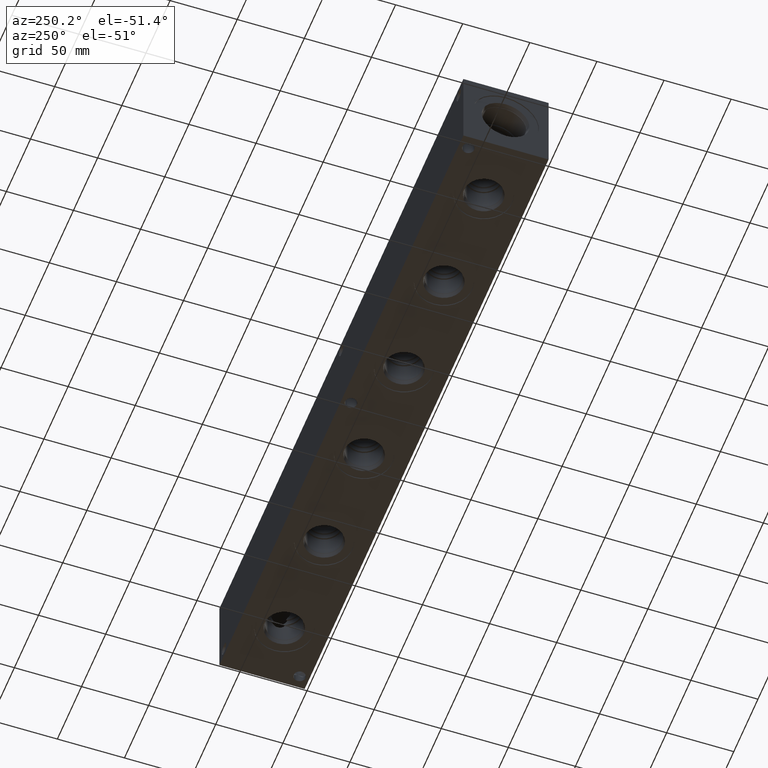
[diagram: clean part render]
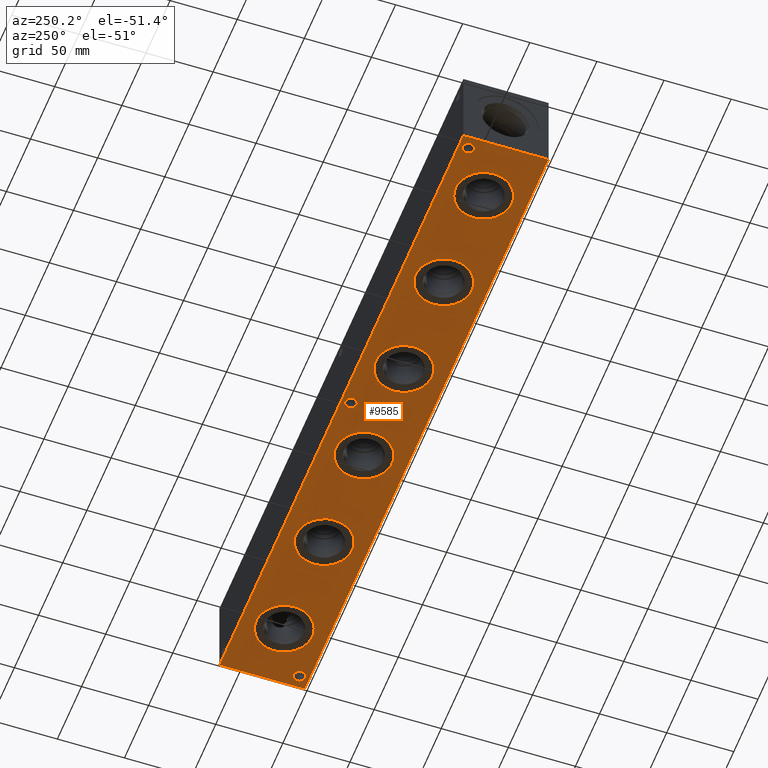
[diagram: same view with one face highlighted and labeled with its STEP entity id]
A machine part, auxiliary view. The second image highlights one B-rep face of the part: STEP entity #9585.
In plain terms, the highlighted planar face has unit normal (0, 0, 1).
Its self-contained STEP definition (entity closure, byte-faithful):
#199=CIRCLE('',#9833,21.0185);
#200=CIRCLE('',#9834,21.0185);
#210=CIRCLE('',#9849,21.0185);
#211=CIRCLE('',#9850,21.0185);
#221=CIRCLE('',#9865,21.0185);
#222=CIRCLE('',#9866,21.0185);
#232=CIRCLE('',#9881,21.0185);
#233=CIRCLE('',#9882,21.0185);
#243=CIRCLE('',#9897,21.0185);
#244=CIRCLE('',#9898,21.0185);
#314=CIRCLE('',#10018,21.0185);
#315=CIRCLE('',#10019,21.0185);
#333=CIRCLE('',#10063,4.3688);
#334=CIRCLE('',#10065,4.3688);
#335=CIRCLE('',#10067,4.3688);
#538=FACE_BOUND('',#1956,.T.);
#539=FACE_BOUND('',#1957,.T.);
#540=FACE_BOUND('',#1958,.T.);
#541=FACE_BOUND('',#1959,.T.);
#542=FACE_BOUND('',#1960,.T.);
#543=FACE_BOUND('',#1961,.T.);
#544=FACE_BOUND('',#1962,.T.);
#545=FACE_BOUND('',#1963,.T.);
#546=FACE_BOUND('',#1964,.T.);
#1393=FACE_OUTER_BOUND('',#1955,.T.);
#1955=EDGE_LOOP('',(#8519,#8520,#8521,#8522));
#1956=EDGE_LOOP('',(#8523,#8524));
#1957=EDGE_LOOP('',(#8525,#8526));
#1958=EDGE_LOOP('',(#8527,#8528));
#1959=EDGE_LOOP('',(#8529,#8530));
#1960=EDGE_LOOP('',(#8531,#8532));
#1961=EDGE_LOOP('',(#8533,#8534));
#1962=EDGE_LOOP('',(#8535));
#1963=EDGE_LOOP('',(#8536));
#1964=EDGE_LOOP('',(#8537));
#2752=LINE('',#16845,#3547);
#2755=LINE('',#16850,#3550);
#2757=LINE('',#16854,#3552);
#2759=LINE('',#16857,#3554);
#3547=VECTOR('',#12467,10.);
#3550=VECTOR('',#12472,10.);
#3552=VECTOR('',#12476,10.);
#3554=VECTOR('',#12480,10.);
#4149=VERTEX_POINT('',#15561);
#4150=VERTEX_POINT('',#15562);
#4160=VERTEX_POINT('',#15592);
#4161=VERTEX_POINT('',#15593);
#4171=VERTEX_POINT('',#15623);
#4172=VERTEX_POINT('',#15624);
#4182=VERTEX_POINT('',#15654);
#4183=VERTEX_POINT('',#15655);
#4193=VERTEX_POINT('',#15685);
#4194=VERTEX_POINT('',#15686);
#4302=VERTEX_POINT('',#16289);
#4303=VERTEX_POINT('',#16290);
#4327=VERTEX_POINT('',#16372);
#4328=VERTEX_POINT('',#16376);
#4329=VERTEX_POINT('',#16380);
#4460=VERTEX_POINT('',#16843);
#4461=VERTEX_POINT('',#16844);
#4462=VERTEX_POINT('',#16849);
#4463=VERTEX_POINT('',#16853);
#5344=EDGE_CURVE('',#4149,#4150,#199,.T.);
#5345=EDGE_CURVE('',#4150,#4149,#200,.T.);
#5359=EDGE_CURVE('',#4160,#4161,#210,.T.);
#5360=EDGE_CURVE('',#4161,#4160,#211,.T.);
#5374=EDGE_CURVE('',#4171,#4172,#221,.T.);
#5375=EDGE_CURVE('',#4172,#4171,#222,.T.);
#5389=EDGE_CURVE('',#4182,#4183,#232,.T.);
#5390=EDGE_CURVE('',#4183,#4182,#233,.T.);
#5404=EDGE_CURVE('',#4193,#4194,#243,.T.);
#5405=EDGE_CURVE('',#4194,#4193,#244,.T.);
#5558=EDGE_CURVE('',#4302,#4303,#314,.T.);
#5559=EDGE_CURVE('',#4303,#4302,#315,.T.);
#5603=EDGE_CURVE('',#4327,#4327,#333,.T.);
#5605=EDGE_CURVE('',#4328,#4328,#334,.T.);
#5607=EDGE_CURVE('',#4329,#4329,#335,.T.);
#5814=EDGE_CURVE('',#4460,#4461,#2752,.T.);
#5817=EDGE_CURVE('',#4462,#4460,#2755,.T.);
#5819=EDGE_CURVE('',#4463,#4462,#2757,.T.);
#5821=EDGE_CURVE('',#4461,#4463,#2759,.T.);
#8519=ORIENTED_EDGE('',*,*,#5821,.F.);
#8520=ORIENTED_EDGE('',*,*,#5814,.F.);
#8521=ORIENTED_EDGE('',*,*,#5817,.F.);
#8522=ORIENTED_EDGE('',*,*,#5819,.F.);
#8523=ORIENTED_EDGE('',*,*,#5344,.T.);
#8524=ORIENTED_EDGE('',*,*,#5345,.T.);
#8525=ORIENTED_EDGE('',*,*,#5359,.T.);
#8526=ORIENTED_EDGE('',*,*,#5360,.T.);
#8527=ORIENTED_EDGE('',*,*,#5374,.T.);
#8528=ORIENTED_EDGE('',*,*,#5375,.T.);
#8529=ORIENTED_EDGE('',*,*,#5389,.T.);
#8530=ORIENTED_EDGE('',*,*,#5390,.T.);
#8531=ORIENTED_EDGE('',*,*,#5404,.T.);
#8532=ORIENTED_EDGE('',*,*,#5405,.T.);
#8533=ORIENTED_EDGE('',*,*,#5558,.T.);
#8534=ORIENTED_EDGE('',*,*,#5559,.T.);
#8535=ORIENTED_EDGE('',*,*,#5603,.T.);
#8536=ORIENTED_EDGE('',*,*,#5605,.T.);
#8537=ORIENTED_EDGE('',*,*,#5607,.T.);
#8785=PLANE('',#10295);
#9585=ADVANCED_FACE('',(#1393,#538,#539,#540,#541,#542,#543,#544,#545,#546),
#8785,.F.);
#9833=AXIS2_PLACEMENT_3D('',#15563,#11428,#11429);
#9834=AXIS2_PLACEMENT_3D('',#15564,#11430,#11431);
#9849=AXIS2_PLACEMENT_3D('',#15594,#11464,#11465);
#9850=AXIS2_PLACEMENT_3D('',#15595,#11466,#11467);
#9865=AXIS2_PLACEMENT_3D('',#15625,#11500,#11501);
#9866=AXIS2_PLACEMENT_3D('',#15626,#11502,#11503);
#9881=AXIS2_PLACEMENT_3D('',#15656,#11536,#11537);
#9882=AXIS2_PLACEMENT_3D('',#15657,#11538,#11539);
#9897=AXIS2_PLACEMENT_3D('',#15687,#11572,#11573);
#9898=AXIS2_PLACEMENT_3D('',#15688,#11574,#11575);
#10018=AXIS2_PLACEMENT_3D('',#16291,#11841,#11842);
#10019=AXIS2_PLACEMENT_3D('',#16292,#11843,#11844);
#10063=AXIS2_PLACEMENT_3D('',#16374,#11945,#11946);
#10065=AXIS2_PLACEMENT_3D('',#16378,#11950,#11951);
#10067=AXIS2_PLACEMENT_3D('',#16382,#11955,#11956);
#10295=AXIS2_PLACEMENT_3D('',#16859,#12483,#12484);
#11428=DIRECTION('center_axis',(0.,0.,1.));
#11429=DIRECTION('ref_axis',(1.,0.,0.));
#11430=DIRECTION('center_axis',(0.,0.,1.));
#11431=DIRECTION('ref_axis',(1.,0.,0.));
#11464=DIRECTION('center_axis',(0.,0.,1.));
#11465=DIRECTION('ref_axis',(1.,0.,0.));
#11466=DIRECTION('center_axis',(0.,0.,1.));
#11467=DIRECTION('ref_axis',(1.,0.,0.));
#11500=DIRECTION('center_axis',(0.,0.,1.));
#11501=DIRECTION('ref_axis',(1.,0.,0.));
#11502=DIRECTION('center_axis',(0.,0.,1.));
#11503=DIRECTION('ref_axis',(1.,0.,0.));
#11536=DIRECTION('center_axis',(0.,0.,1.));
#11537=DIRECTION('ref_axis',(1.,0.,0.));
#11538=DIRECTION('center_axis',(0.,0.,1.));
#11539=DIRECTION('ref_axis',(1.,0.,0.));
#11572=DIRECTION('center_axis',(0.,0.,1.));
#11573=DIRECTION('ref_axis',(1.,0.,0.));
#11574=DIRECTION('center_axis',(0.,0.,1.));
#11575=DIRECTION('ref_axis',(1.,0.,0.));
#11841=DIRECTION('center_axis',(0.,0.,1.));
#11842=DIRECTION('ref_axis',(1.,0.,0.));
#11843=DIRECTION('center_axis',(0.,0.,1.));
#11844=DIRECTION('ref_axis',(1.,0.,0.));
#11945=DIRECTION('center_axis',(0.,0.,1.));
#11946=DIRECTION('ref_axis',(1.,0.,0.));
#11950=DIRECTION('center_axis',(0.,0.,1.));
#11951=DIRECTION('ref_axis',(1.,0.,0.));
#11955=DIRECTION('center_axis',(0.,0.,1.));
#11956=DIRECTION('ref_axis',(1.,0.,0.));
#12467=DIRECTION('',(0.,-1.,0.));
#12472=DIRECTION('',(-1.,0.,0.));
#12476=DIRECTION('',(0.,1.,0.));
#12480=DIRECTION('',(1.,0.,0.));
#12483=DIRECTION('center_axis',(0.,0.,1.));
#12484=DIRECTION('ref_axis',(1.,0.,0.));
#15561=CARTESIAN_POINT('',(479.7933,31.75,0.));
#15562=CARTESIAN_POINT('',(437.7563,31.75,0.));
#15563=CARTESIAN_POINT('Origin',(458.7748,31.75,0.));
#15564=CARTESIAN_POINT('Origin',(458.7748,31.75,0.));
#15592=CARTESIAN_POINT('',(397.2433,31.75,0.));
#15593=CARTESIAN_POINT('',(355.2063,31.75,0.));
#15594=CARTESIAN_POINT('Origin',(376.2248,31.75,0.));
#15595=CARTESIAN_POINT('Origin',(376.2248,31.75,0.));
#15623=CARTESIAN_POINT('',(314.6933,31.75,0.));
#15624=CARTESIAN_POINT('',(272.6563,31.75,0.));
#15625=CARTESIAN_POINT('Origin',(293.6748,31.75,0.));
#15626=CARTESIAN_POINT('Origin',(293.6748,31.75,0.));
#15654=CARTESIAN_POINT('',(232.1433,31.75,0.));
#15655=CARTESIAN_POINT('',(190.1063,31.75,0.));
#15656=CARTESIAN_POINT('Origin',(211.1248,31.75,0.));
#15657=CARTESIAN_POINT('Origin',(211.1248,31.75,0.));
#15685=CARTESIAN_POINT('',(149.5933,31.75,0.));
#15686=CARTESIAN_POINT('',(107.5563,31.75,0.));
#15687=CARTESIAN_POINT('Origin',(128.5748,31.75,0.));
#15688=CARTESIAN_POINT('Origin',(128.5748,31.75,0.));
#16289=CARTESIAN_POINT('',(67.0433,31.75,0.));
#16290=CARTESIAN_POINT('',(25.0063,31.75,0.));
#16291=CARTESIAN_POINT('Origin',(46.0248,31.75,0.));
#16292=CARTESIAN_POINT('Origin',(46.0248,31.75,0.));
#16372=CARTESIAN_POINT('',(248.0564,56.3626,0.));
#16374=CARTESIAN_POINT('Origin',(252.4252,56.3626,0.));
#16376=CARTESIAN_POINT('',(5.1562,56.3626,0.));
#16378=CARTESIAN_POINT('Origin',(9.525,56.3626,0.));
#16380=CARTESIAN_POINT('',(490.9312,7.1374,0.));
#16382=CARTESIAN_POINT('Origin',(495.3,7.1374,0.));
#16843=CARTESIAN_POINT('',(0.,63.5,0.));
#16844=CARTESIAN_POINT('',(0.,0.,0.));
#16845=CARTESIAN_POINT('',(0.,63.5,0.));
#16849=CARTESIAN_POINT('',(504.825,63.5,0.));
#16850=CARTESIAN_POINT('',(504.825,63.5,0.));
#16853=CARTESIAN_POINT('',(504.825,0.,0.));
#16854=CARTESIAN_POINT('',(504.825,0.,0.));
#16857=CARTESIAN_POINT('',(0.,0.,0.));
#16859=CARTESIAN_POINT('Origin',(252.4125,31.75,0.));